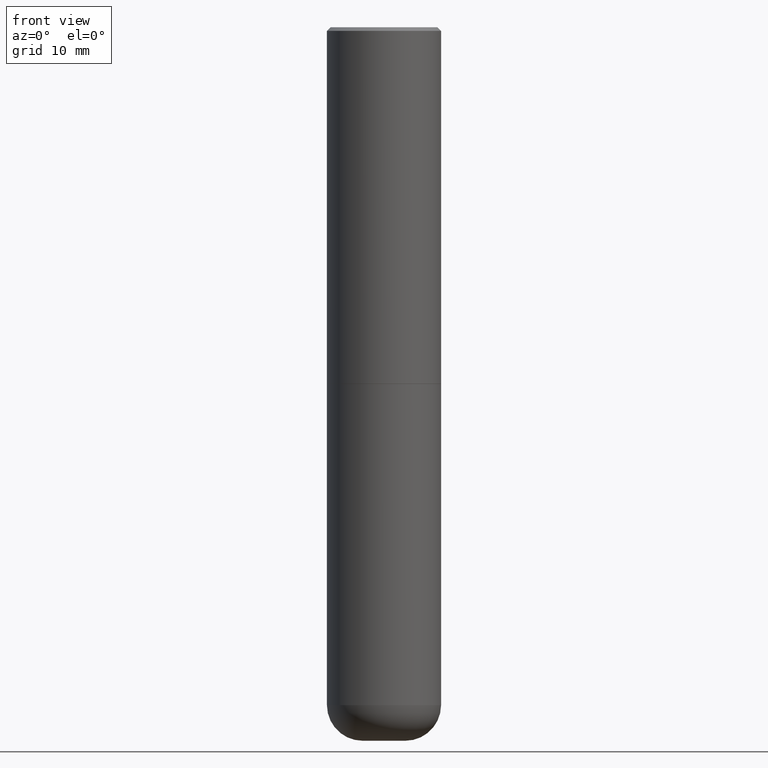
[diagram: clean part render]
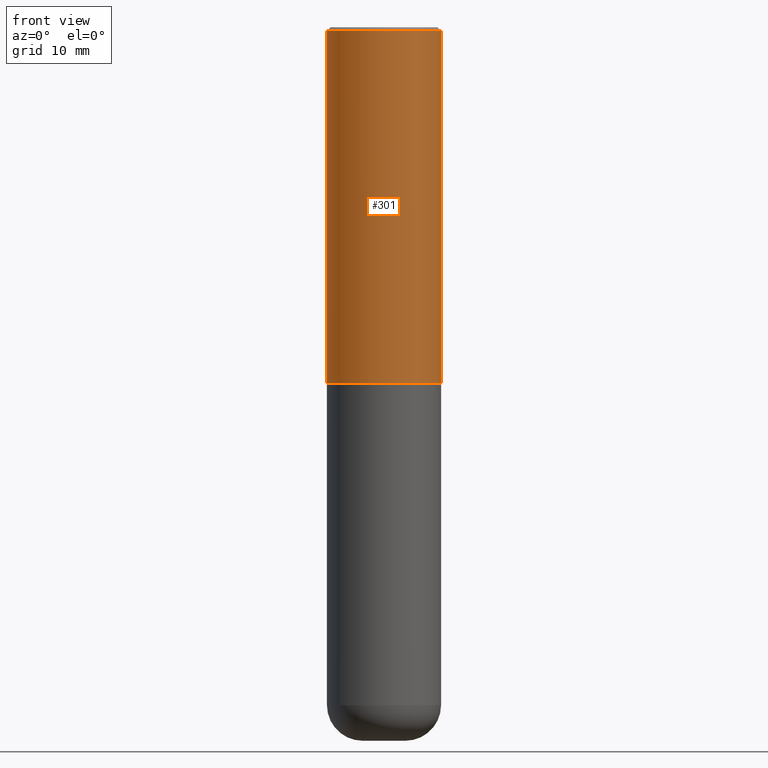
[diagram: same view with one face highlighted and labeled with its STEP entity id]
A machine part, front view. The second image highlights one B-rep face of the part: STEP entity #301.
In plain terms, the highlighted cylindrical surface (partial cylindrical patch) has radius 7.9997 mm, axis along (-0, 0, 1).
Its self-contained STEP definition (entity closure, byte-faithful):
#4 = AXIS2_PLACEMENT_3D ( 'NONE', #415, #354, #408 ) ;
#9 = ORIENTED_EDGE ( 'NONE', *, *, #209, .T. ) ;
#12 = EDGE_CURVE ( 'NONE', #186, #287, #225, .T. ) ;
#23 = FACE_OUTER_BOUND ( 'NONE', #57, .T. ) ;
#43 = CIRCLE ( 'NONE', #282, 0.3149500000000002853 ) ;
#56 = DIRECTION ( 'NONE',  ( -2.445468806185136877E-29, 3.491481338843145188E-15, 1.000000000000000000 ) ) ;
#57 = EDGE_LOOP ( 'NONE', ( #356, #9, #123, #61 ) ) ;
#61 = ORIENTED_EDGE ( 'NONE', *, *, #12, .F. ) ;
#67 = DIRECTION ( 'NONE',  ( 1.000000000000000000, -6.982962677686266711E-15, 0.000000000000000000 ) ) ;
#77 = AXIS2_PLACEMENT_3D ( 'NONE', #341, #172, #67 ) ;
#85 = VECTOR ( 'NONE', #56, 39.37007874015748143 ) ;
#123 = ORIENTED_EDGE ( 'NONE', *, *, #245, .T. ) ;
#125 = VERTEX_POINT ( 'NONE', #335 ) ;
#127 = CARTESIAN_POINT ( 'NONE',  ( -0.3149500000000001743, 2.237854346276436774E-15, -1.549218606675783237E-29 ) ) ;
#142 = DIRECTION ( 'NONE',  ( 1.000000000000000000, -6.982962677686267499E-15, 0.000000000000000000 ) ) ;
#143 = CARTESIAN_POINT ( 'NONE',  ( 4.811459876169256792E-29, -6.869489534173889489E-15, -1.967500000000000249 ) ) ;
#144 = CARTESIAN_POINT ( 'NONE',  ( 0.3149500000000001743, -2.199284095337290660E-15, 1.535751875536930690E-29 ) ) ;
#172 = DIRECTION ( 'NONE',  ( -2.445468806185136597E-29, 3.491481338843145583E-15, 1.000000000000000000 ) ) ;
#175 = DIRECTION ( 'NONE',  ( -2.445468806185136597E-29, 3.491481338843145583E-15, 1.000000000000000000 ) ) ;
#184 = CYLINDRICAL_SURFACE ( 'NONE', #4, 0.3149500000000001743 ) ;
#186 = VERTEX_POINT ( 'NONE', #214 ) ;
#209 = EDGE_CURVE ( 'NONE', #125, #327, #43, .T. ) ;
#211 = LINE ( 'NONE', #144, #269 ) ;
#214 = CARTESIAN_POINT ( 'NONE',  ( -0.3149500000000000077, 2.129454468560426573E-15, -0.02000000000000006981 ) ) ;
#225 = CIRCLE ( 'NONE', #77, 0.3149500000000000077 ) ;
#245 = EDGE_CURVE ( 'NONE', #327, #287, #211, .T. ) ;
#260 = CARTESIAN_POINT ( 'NONE',  ( 0.3149500000000002853, -9.068773629511181726E-15, -1.967500000000000249 ) ) ;
#269 = VECTOR ( 'NONE', #406, 39.37007874015748143 ) ;
#282 = AXIS2_PLACEMENT_3D ( 'NONE', #143, #175, #142 ) ;
#284 = CARTESIAN_POINT ( 'NONE',  ( 0.3149500000000000077, -2.230543471175007450E-15, -0.02000000000000006981 ) ) ;
#286 = LINE ( 'NONE', #127, #85 ) ;
#287 = VERTEX_POINT ( 'NONE', #284 ) ;
#301 = ADVANCED_FACE ( 'NONE', ( #23 ), #184, .T. ) ;
#327 = VERTEX_POINT ( 'NONE', #260 ) ;
#335 = CARTESIAN_POINT ( 'NONE',  ( -0.3149500000000002853, -1.231805234198937253E-15, -1.967500000000000249 ) ) ;
#341 = CARTESIAN_POINT ( 'NONE',  ( 4.890937612370289799E-31, -6.982962677686315028E-17, -0.02000000000000006981 ) ) ;
#354 = DIRECTION ( 'NONE',  ( -2.445468806185136597E-29, 3.491481338843145583E-15, 1.000000000000000000 ) ) ;
#356 = ORIENTED_EDGE ( 'NONE', *, *, #372, .F. ) ;
#372 = EDGE_CURVE ( 'NONE', #125, #186, #286, .T. ) ;
#406 = DIRECTION ( 'NONE',  ( -2.445468806185136877E-29, 3.491481338843145188E-15, 1.000000000000000000 ) ) ;
#408 = DIRECTION ( 'NONE',  ( 1.000000000000000000, -6.982962677686265922E-15, 4.876176775795935232E-29 ) ) ;
#415 = CARTESIAN_POINT ( 'NONE',  ( 0.000000000000000000, 0.000000000000000000, 0.000000000000000000 ) ) ;